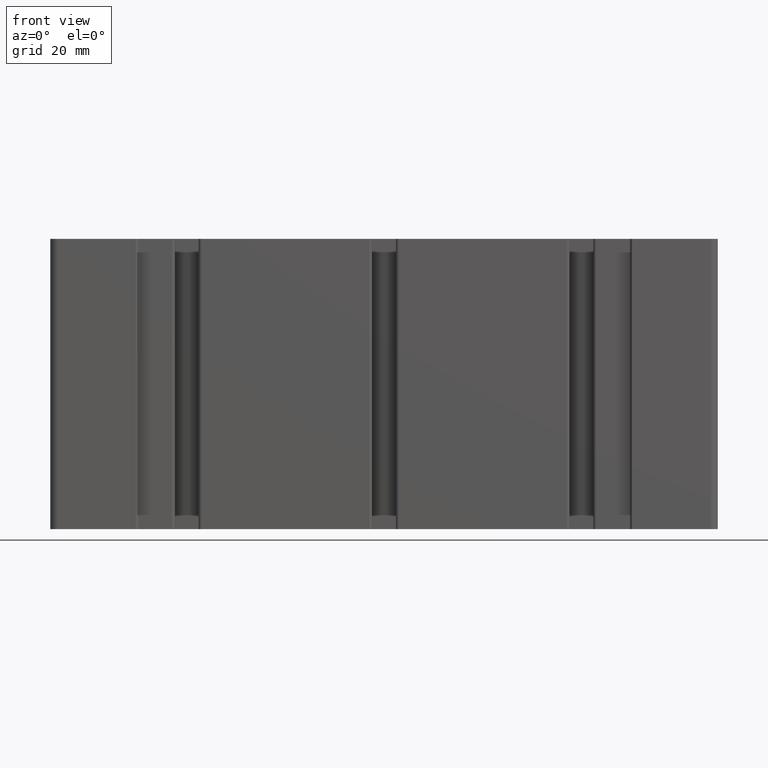
[diagram: clean part render]
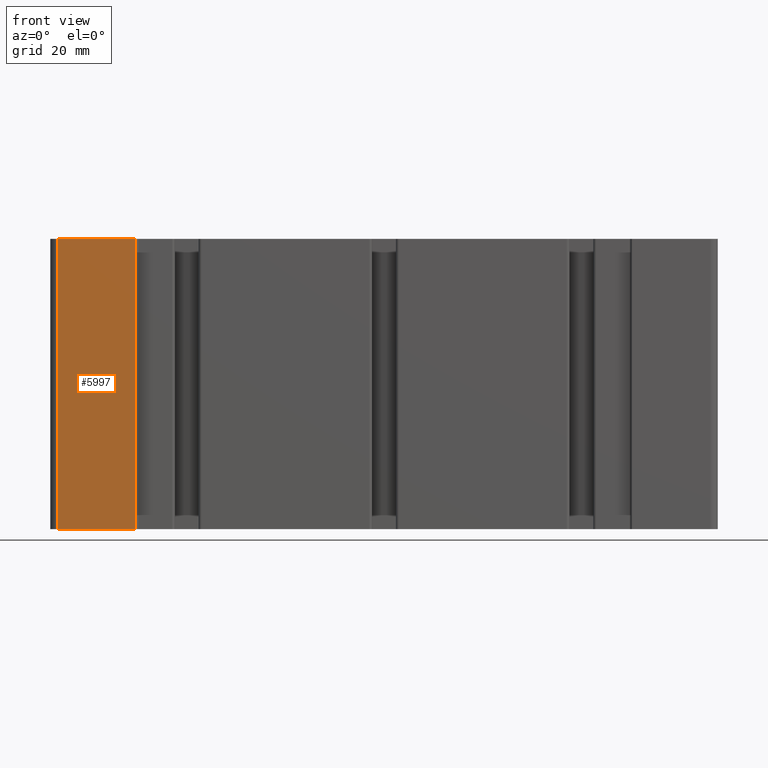
[diagram: same view with one face highlighted and labeled with its STEP entity id]
A machine part, front view. The second image highlights one B-rep face of the part: STEP entity #5997.
In plain terms, the highlighted planar face has unit normal (0, -1, 0).
Its self-contained STEP definition (entity closure, byte-faithful):
#84=PLANE('',#6404);
#358=FACE_OUTER_BOUND('',#665,.T.);
#665=EDGE_LOOP('',(#4423,#4424,#4425,#4426));
#1082=LINE('',#8951,#1821);
#1083=LINE('',#8954,#1822);
#1084=LINE('',#8956,#1823);
#1085=LINE('',#8957,#1824);
#1821=VECTOR('',#7281,100.);
#1822=VECTOR('',#7284,26.9);
#1823=VECTOR('',#7285,26.9);
#1824=VECTOR('',#7286,100.);
#2722=VERTEX_POINT('',#8947);
#2723=VERTEX_POINT('',#8949);
#2724=VERTEX_POINT('',#8953);
#2725=VERTEX_POINT('',#8955);
#3424=EDGE_CURVE('',#2722,#2723,#1082,.T.);
#3425=EDGE_CURVE('',#2722,#2724,#1083,.T.);
#3426=EDGE_CURVE('',#2725,#2723,#1084,.T.);
#3427=EDGE_CURVE('',#2724,#2725,#1085,.T.);
#4423=ORIENTED_EDGE('',*,*,#3425,.F.);
#4424=ORIENTED_EDGE('',*,*,#3424,.T.);
#4425=ORIENTED_EDGE('',*,*,#3426,.F.);
#4426=ORIENTED_EDGE('',*,*,#3427,.F.);
#5997=ADVANCED_FACE('',(#358),#84,.T.);
#6404=AXIS2_PLACEMENT_3D('',#8952,#7282,#7283);
#7281=DIRECTION('',(0.,0.,1.));
#7282=DIRECTION('center_axis',(0.,-1.,0.));
#7283=DIRECTION('ref_axis',(1.,0.,0.));
#7284=DIRECTION('',(-1.,0.,0.));
#7285=DIRECTION('',(1.,0.,0.));
#7286=DIRECTION('',(0.,0.,1.));
#8947=CARTESIAN_POINT('',(-85.6,-12.,0.));
#8949=CARTESIAN_POINT('',(-85.6,-12.,100.));
#8951=CARTESIAN_POINT('',(-85.6,-12.,0.));
#8952=CARTESIAN_POINT('Origin',(-112.5,-12.,0.));
#8953=CARTESIAN_POINT('',(-112.5,-12.,0.));
#8954=CARTESIAN_POINT('',(-85.6,-12.,0.));
#8955=CARTESIAN_POINT('',(-112.5,-12.,100.));
#8956=CARTESIAN_POINT('',(-85.6,-12.,100.));
#8957=CARTESIAN_POINT('',(-112.5,-12.,0.));